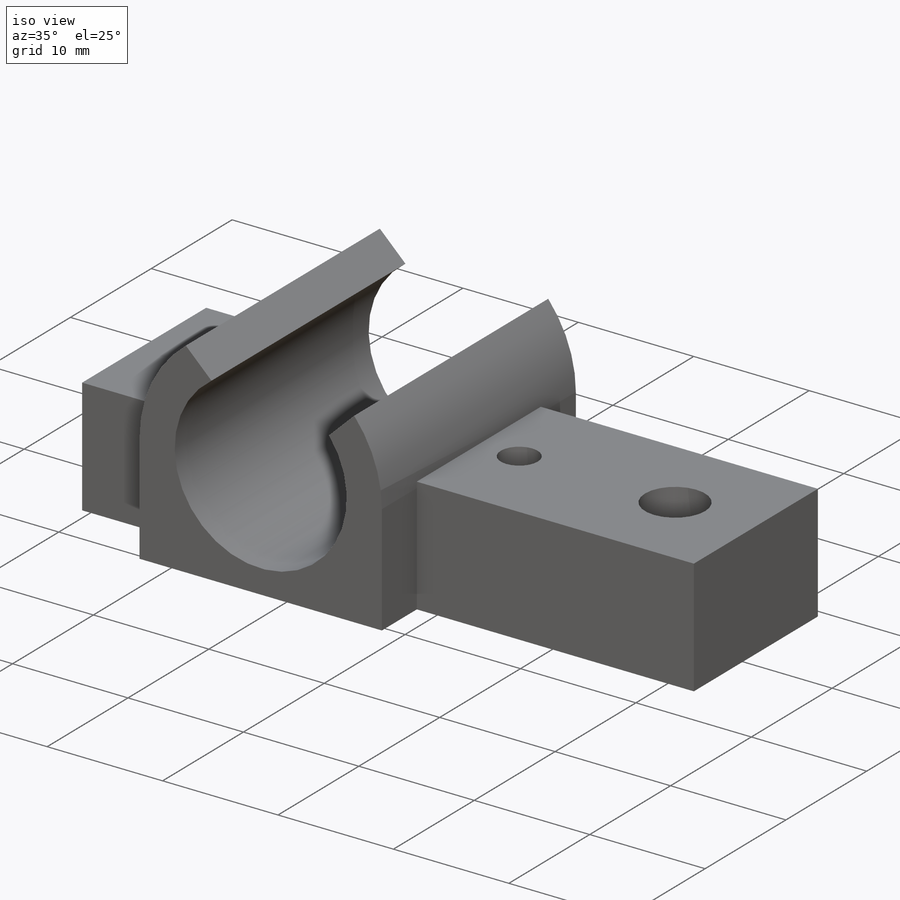
[diagram: iso view]
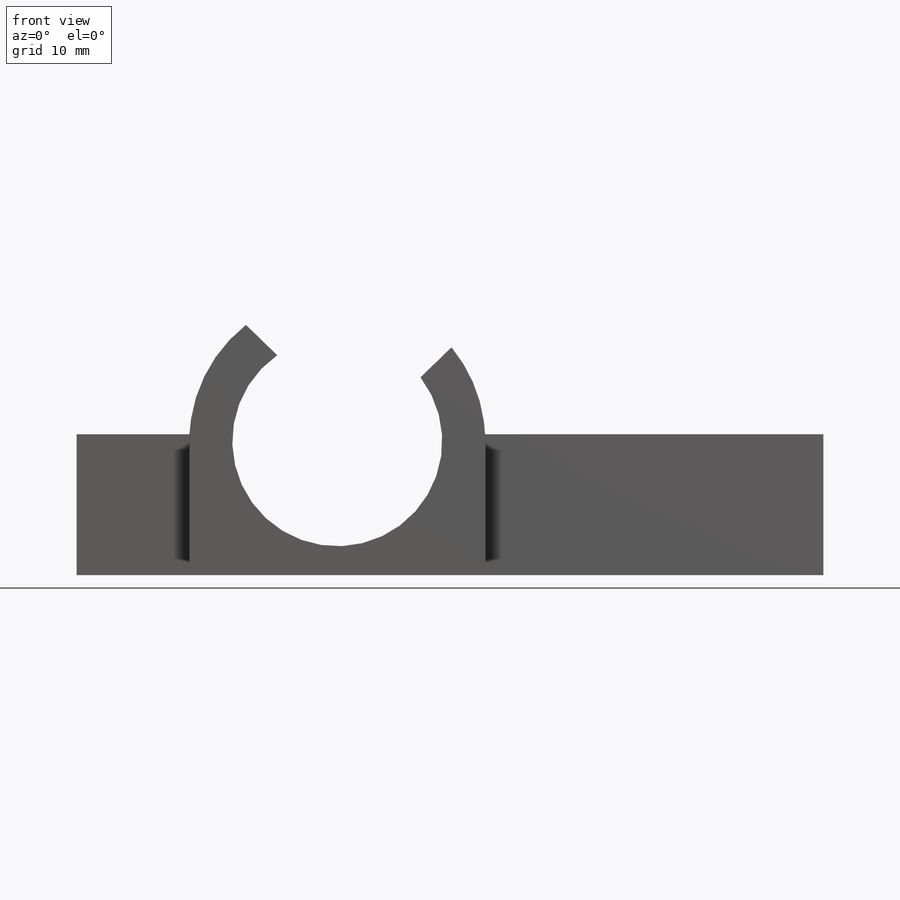
[diagram: front view]
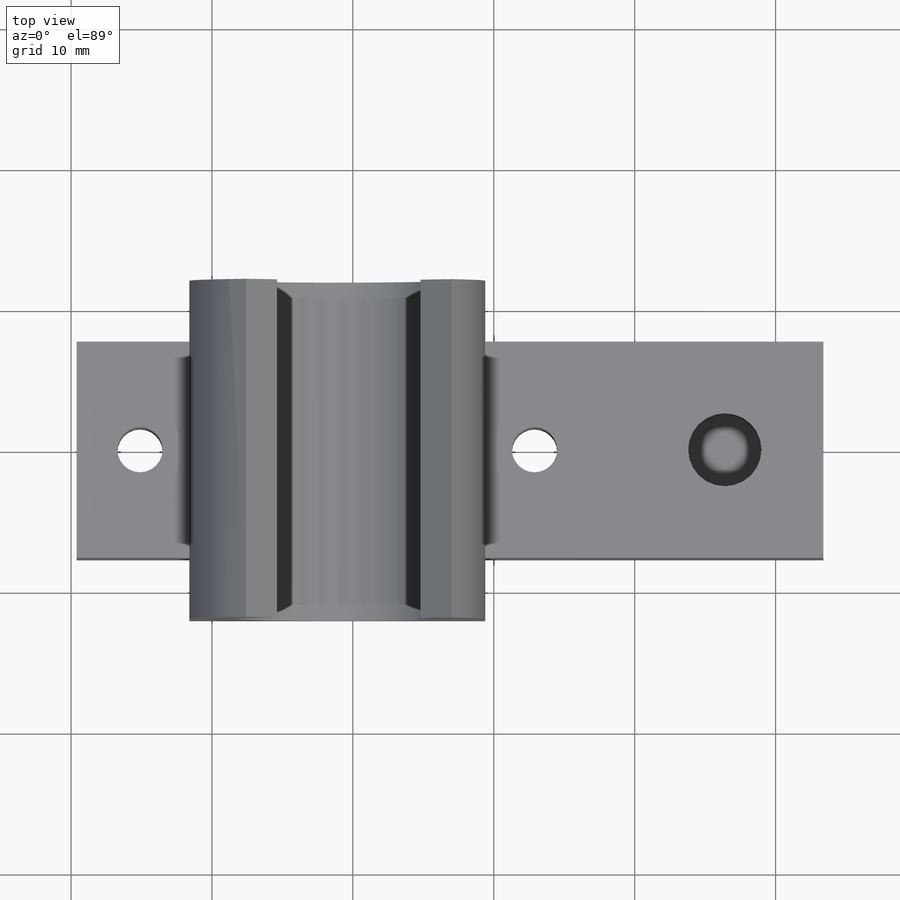
[diagram: top view]
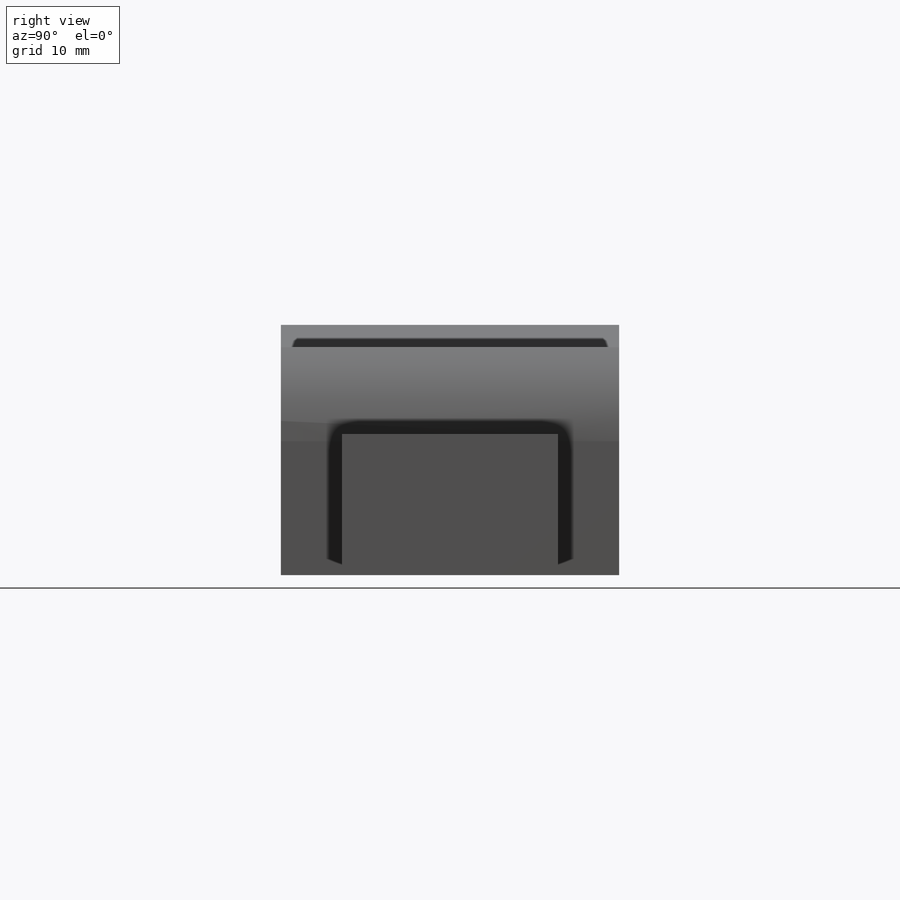
[diagram: right view]
SOLIDWORKS PART (.sldprt)
format: sldprt  version: not decoded by parser v0  size: 249,856 bytes
history: native  units: mm
features: sketch x5, extrude x3, cut_extrude x2, material x1 (+12 scaffold rows collapsed)
feature tree (23):
  scaffold x12  (default folders/planes/origin — collapsed)
  material  "Material <not specified>"
  sketch  "Sketch1"  dims[c1.D1=3.2mm c1.D2=3.2mm c1.D3=3.2mm c1.D4=5.2mm c1.D5=3.2mm c1.D7=3.2mm c1.D8=5.2mm c1.D9=~9.353074mm c1.D10=~9.353074mm c2.D3=28.0mm c2.D5=13.5mm c2.D6=8.1mm c2.D7=4.5mm c2.D8=7.0mm c2.D9=7.675mm c2.D10=7.675mm]
  extrude  "Boss-Extrude1"  Depth=10mm
  sketch  "Sketch2"  dims[c1.D1=14.9mm c1.D2=15.0mm c1.D3=15.0mm c1.D4=21.0mm c2.D2=9.5mm c2.D3=14.0mm c2.D5=135.0deg c3.D2=14.0mm]
  extrude  "Boss-Extrude2"  Depth=4.325mm
  sketch  "Sketch3"  dims[D1=0.0mm]
  cut_extrude  "Cut-Extrude1"  [1 undecoded]
  sketch  "Sketch4"  dims[D1=9.3mm]
  cut_extrude  "Cut-Extrude2"  Depth=4mm
  sketch  "Sketch5"
  extrude  "Boss-Extrude3"  Depth=0.4mm
decode coverage: 8 of 10 modeling features carry decoded parameters
note: ~ marks probable driven/reference dimensions
note: 1 parameter value undecoded
note: suppression state not decoded; provenance and decode notes live in map.json
